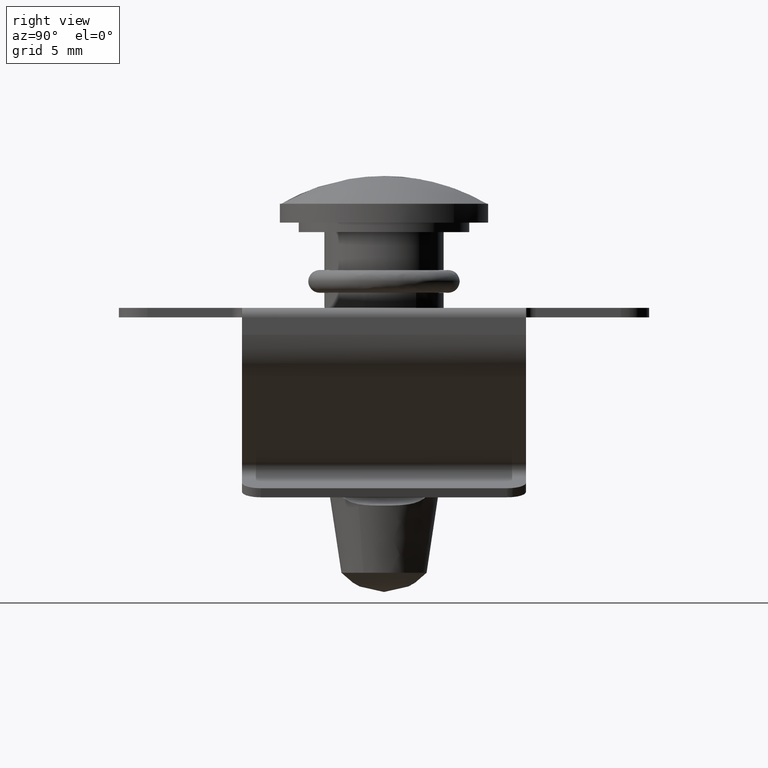
[diagram: clean part render]
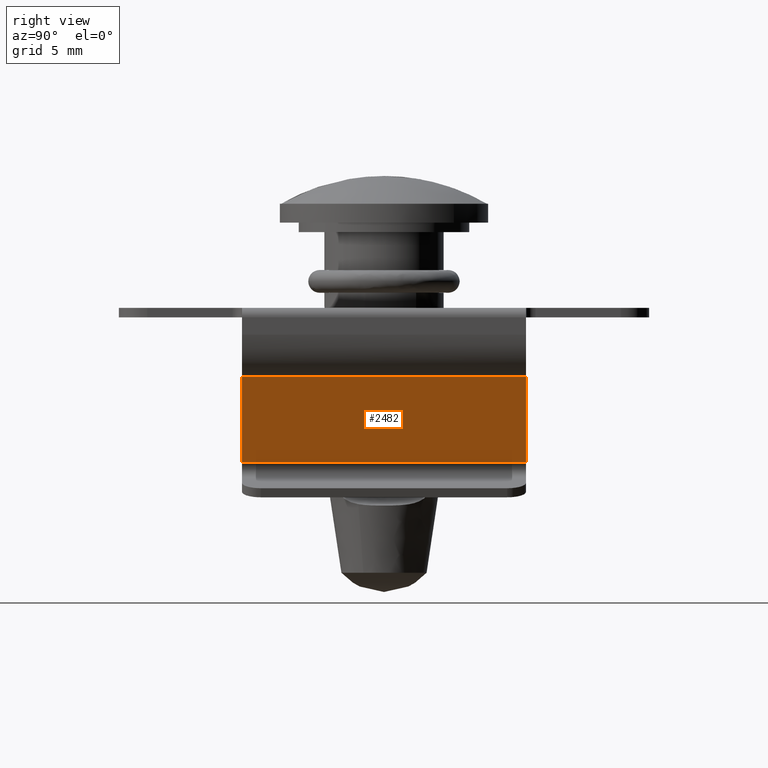
[diagram: same view with one face highlighted and labeled with its STEP entity id]
A machine part, right view. The second image highlights one B-rep face of the part: STEP entity #2482.
In plain terms, the highlighted face is a freeform B-spline surface patch.
Its self-contained STEP definition (entity closure, byte-faithful):
#1013=CARTESIAN_POINT('',(7.500000000000000,8.132999999999999,1.660000000000000));
#1014=VERTEX_POINT('',#1013);
#1029=CARTESIAN_POINT('',(7.500000000000000,3.608190447077380,6.539796517847861));
#1030=VERTEX_POINT('',#1029);
#1031=CARTESIAN_POINT('',(7.500000000000000,8.132999999999999,1.660000000000000));
#1032=CARTESIAN_POINT('',(7.500000000000000,3.608190447077380,6.539796517847861));
#1033=QUASI_UNIFORM_CURVE('',1,(#1031,#1032),.UNSPECIFIED.,.F.,.U.);
#1034=EDGE_CURVE('',#1014,#1030,#1033,.T.);
#1438=CARTESIAN_POINT('',(-7.500000000000000,3.608190447077380,6.539796517847861));
#1439=VERTEX_POINT('',#1438);
#1451=CARTESIAN_POINT('',(-7.500000000000000,8.132999999999999,1.660000000000000));
#1452=VERTEX_POINT('',#1451);
#1453=CARTESIAN_POINT('',(-7.500000000000000,3.608190447077380,6.539796517847861));
#1454=CARTESIAN_POINT('',(-7.500000000000000,8.132999999999999,1.660000000000000));
#1455=QUASI_UNIFORM_CURVE('',1,(#1453,#1454),.UNSPECIFIED.,.F.,.U.);
#1456=EDGE_CURVE('',#1439,#1452,#1455,.T.);
#2080=CARTESIAN_POINT('',(-7.500000000000000,8.132999999999999,1.660000000000000));
#2081=CARTESIAN_POINT('',(7.500000000000000,8.132999999999999,1.660000000000000));
#2082=QUASI_UNIFORM_CURVE('',1,(#2080,#2081),.UNSPECIFIED.,.F.,.U.);
#2083=EDGE_CURVE('',#1452,#1014,#2082,.T.);
#2467=CARTESIAN_POINT('',(-8.249249970927089,3.382176346105872,6.783542207032252));
#2468=CARTESIAN_POINT('',(-8.249249970927089,8.359014343701203,1.416254049042924));
#2469=CARTESIAN_POINT('',(8.249250373258443,3.382176346105872,6.783542207032252));
#2470=CARTESIAN_POINT('',(8.249250373258443,8.359014343701203,1.416254049042924));
#2471=B_SPLINE_SURFACE_WITH_KNOTS('',1,1,((#2467,#2469),(#2468,#2470)),.UNSPECIFIED.,.F.,.F.,.U.,(2,2),(2,2),(0.0,7.319610551470698),(0.0,16.498500344185530),.UNSPECIFIED.);
#2472=ORIENTED_EDGE('',*,*,#1034,.F.);
#2473=ORIENTED_EDGE('',*,*,#2083,.F.);
#2474=ORIENTED_EDGE('',*,*,#1456,.F.);
#2475=CARTESIAN_POINT('',(-7.500000000000000,3.608190447077380,6.539796517847861));
#2476=CARTESIAN_POINT('',(7.500000000000000,3.608190447077380,6.539796517847861));
#2477=QUASI_UNIFORM_CURVE('',1,(#2475,#2476),.UNSPECIFIED.,.F.,.U.);
#2478=EDGE_CURVE('',#1439,#1030,#2477,.T.);
#2479=ORIENTED_EDGE('',*,*,#2478,.T.);
#2480=EDGE_LOOP('',(#2472,#2473,#2474,#2479));
#2481=FACE_OUTER_BOUND('',#2480,.T.);
#2482=ADVANCED_FACE('',(#2481),#2471,.F.);